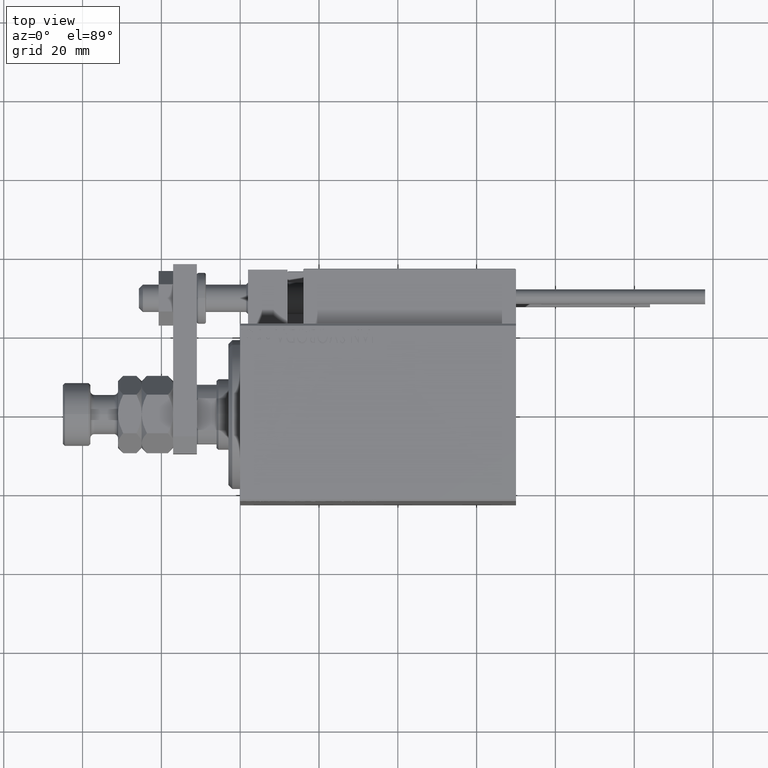
[diagram: clean part render]
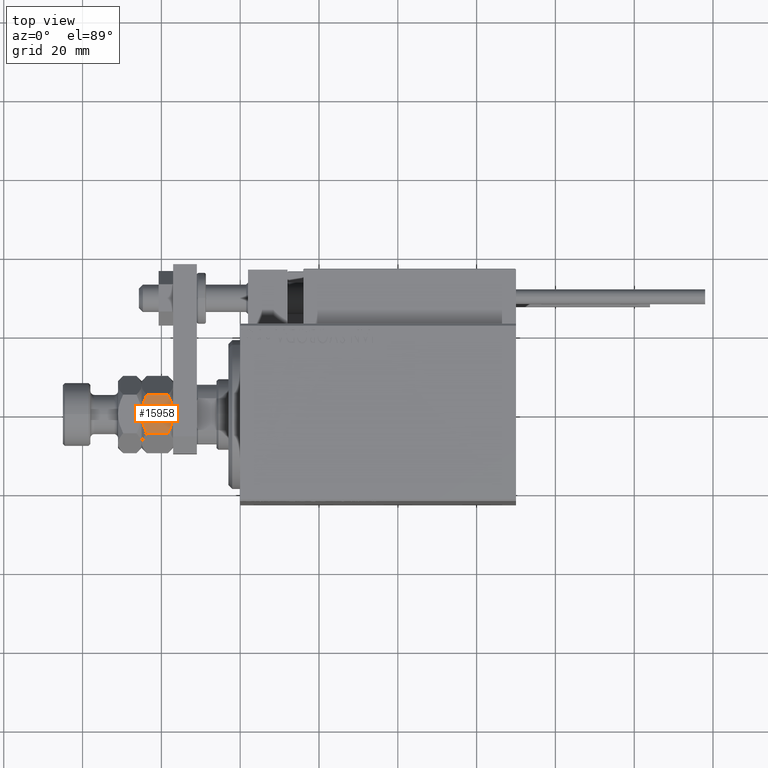
[diagram: same view with one face highlighted and labeled with its STEP entity id]
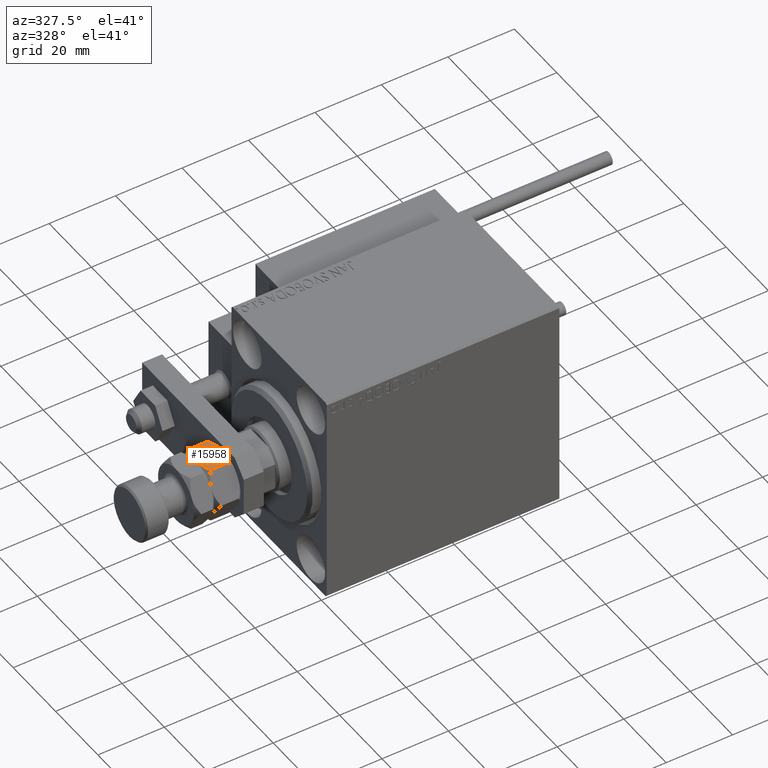
[diagram: same view with one face highlighted and labeled with its STEP entity id]
A machine part, top view. The second image highlights one B-rep face of the part: STEP entity #15958.
A second angle (auxiliary view) of the same face is appended — the face is thin or edge-on in the first view.
In plain terms, the highlighted planar face has unit normal (0, 0, -1).
Its self-contained STEP definition (entity closure, byte-faithful):
#274 = B_SPLINE_CURVE_WITH_KNOTS ( 'NONE', 3,
 ( #49676, #29806, #5929, #21906, #14058, #16102, #4062, #22944 ),
 .UNSPECIFIED., .F., .F.,
 ( 4, 2, 2, 4 ),
 ( 0.02090421300422859452, 0.02218651579087455028, 0.02346881857752050951, 0.02603342415081242450 ),
 .UNSPECIFIED. ) ;
#316 = VERTEX_POINT ( 'NONE', #29132 ) ;
#404 = VECTOR ( 'NONE', #42944, 1000.000000000000000 ) ;
#1139 = CARTESIAN_POINT ( 'NONE',  ( 8.500000000000003553, 2.119956228269632259, 0.2515287342491187572 ) ) ;
#1396 = CARTESIAN_POINT ( 'NONE',  ( 8.500000000000001776, 0.000000000000000000, 0.000000000000000000 ) ) ;
#2579 = CARTESIAN_POINT ( 'NONE',  ( 8.500000000000000000, -3.351438397892505083, 7.397066932847726761 ) ) ;
#4062 = CARTESIAN_POINT ( 'NONE',  ( 8.500000000000001776, 4.140161075469494634, 7.068703530097530496 ) ) ;
#4813 = CARTESIAN_POINT ( 'NONE',  ( 8.500000000000001776, 1.697406582464703328, 0.1576838761756153839 ) ) ;
#5929 = CARTESIAN_POINT ( 'NONE',  ( 8.500000000000003553, 0.8516617604573274436, 7.967848961132536267 ) ) ;
#6162 = EDGE_CURVE ( 'NONE', #38382, #9342, #24151, .T. ) ;
#6363 = ORIENTED_EDGE ( 'NONE', *, *, #12881, .T. ) ;
#6729 = DIRECTION ( 'NONE',  ( -1.000000000000000000, 0.000000000000000000, 0.000000000000000000 ) ) ;
#6984 = DIRECTION ( 'NONE',  ( 0.000000000000000000, 0.000000000000000000, 1.000000000000000000 ) ) ;
#7048 = AXIS2_PLACEMENT_3D ( 'NONE', #42631, #6729, #6984 ) ;
#9342 = VERTEX_POINT ( 'NONE', #22369 ) ;
#10582 = CARTESIAN_POINT ( 'NONE',  ( 8.500000000000003553, -4.139332188297093040, 0.9308820263162719266 ) ) ;
#10708 = CARTESIAN_POINT ( 'NONE',  ( 8.500000000000001776, -1.698611466173707063, 7.842106890605590408 ) ) ;
#10741 = EDGE_LOOP ( 'NONE', ( #31178, #24410, #32139, #23481, #6363, #30151 ) ) ;
#10830 = CARTESIAN_POINT ( 'NONE',  ( 8.500000000000001776, 4.907477288111821601, 8.000000000000000000 ) ) ;
#12407 = CARTESIAN_POINT ( 'NONE',  ( 8.500000000000001776, 4.907477288111821601, 1.314954576223634763 ) ) ;
#12677 = B_SPLINE_CURVE_WITH_KNOTS ( 'NONE', 3,
 ( #12407, #41221, #37038, #1139, #4813, #45149, #40186, #1396 ),
 .UNSPECIFIED., .F., .F.,
 ( 4, 2, 2, 4 ),
 ( 0.01599723978826465831, 0.01855901487057517660, 0.01983990241173043401, 0.02112078995288569488 ),
 .UNSPECIFIED. ) ;
#12881 = EDGE_CURVE ( 'NONE', #38382, #45783, #35103, .T. ) ;
#13007 = VECTOR ( 'NONE', #26054, 1000.000000000000000 ) ;
#14058 = CARTESIAN_POINT ( 'NONE',  ( 8.500000000000001776, 2.124043526558854644, 7.747436326571863319 ) ) ;
#14261 = CARTESIAN_POINT ( 'NONE',  ( 8.500000000000001776, -4.907477288111817160, 1.314954576223629878 ) ) ;
#14513 = CARTESIAN_POINT ( 'NONE',  ( 8.500000000000001776, -0.8519727303832901333, 0.03214805330870232347 ) ) ;
#14887 = CARTESIAN_POINT ( 'NONE',  ( 8.500000000000001776, 4.907477288111821601, 6.685045423776367457 ) ) ;
#15629 = B_SPLINE_CURVE_WITH_KNOTS ( 'NONE', 3,
 ( #38367, #42293, #14513, #27086, #46481, #18949, #10582, #14261 ),
 .UNSPECIFIED., .F., .F.,
 ( 4, 2, 2, 4 ),
 ( 0.02112078995288569488, 0.02240296911910873157, 0.02368514828533176825, 0.02624950661777783814 ),
 .UNSPECIFIED. ) ;
#15958 = ADVANCED_FACE ( 'NONE', ( #38452 ), #45794, .F. ) ;
#16102 = CARTESIAN_POINT ( 'NONE',  ( 8.500000000000001776, 3.353279637626476628, 7.396279653520239528 ) ) ;
#16479 = EDGE_CURVE ( 'NONE', #32655, #316, #12677, .T. ) ;
#17429 = EDGE_CURVE ( 'NONE', #30706, #32655, #42536, .T. ) ;
#18458 = EDGE_CURVE ( 'NONE', #316, #45783, #15629, .T. ) ;
#18949 = CARTESIAN_POINT ( 'NONE',  ( 8.500000000000005329, -3.352020480670829361, 0.6033098685796225435 ) ) ;
#19095 = CARTESIAN_POINT ( 'NONE',  ( 8.500000000000001776, -4.907477288111821601, 8.000000000000000000 ) ) ;
#19581 = CARTESIAN_POINT ( 'NONE',  ( 8.500000000000001776, -0.4250562772389715471, 8.000000000000001776 ) ) ;
#21906 = CARTESIAN_POINT ( 'NONE',  ( 8.500000000000003553, 1.704290491844008049, 7.841080917550288021 ) ) ;
#22369 = CARTESIAN_POINT ( 'NONE',  ( 8.499999999999996447, 0.000000000000000000, 8.000000000000000000 ) ) ;
#22944 = CARTESIAN_POINT ( 'NONE',  ( 8.500000000000001776, 4.907477288111821601, 6.685045423776367457 ) ) ;
#23481 = ORIENTED_EDGE ( 'NONE', *, *, #6162, .F. ) ;
#23507 = CARTESIAN_POINT ( 'NONE',  ( 8.500000000000001776, -4.907477288111817160, 1.314954576223629878 ) ) ;
#24151 = B_SPLINE_CURVE_WITH_KNOTS ( 'NONE', 3,
 ( #30391, #46349, #2579, #50524, #10708, #26700, #19581, #42927 ),
 .UNSPECIFIED., .F., .F.,
 ( 4, 2, 2, 4 ),
 ( 0.01578235603560546041, 0.01834328451991702746, 0.01962374876207281099, 0.02090421300422859452 ),
 .UNSPECIFIED. ) ;
#24410 = ORIENTED_EDGE ( 'NONE', *, *, #17429, .F. ) ;
#24639 = EDGE_CURVE ( 'NONE', #9342, #30706, #274, .T. ) ;
#26054 = DIRECTION ( 'NONE',  ( -0.000000000000000000, -0.000000000000000000, -1.000000000000000000 ) ) ;
#26700 = CARTESIAN_POINT ( 'NONE',  ( 8.500000000000001776, -0.8497849549400450231, 7.967944758129792859 ) ) ;
#27086 = CARTESIAN_POINT ( 'NONE',  ( 8.500000000000001776, -1.706008309425097957, 0.1592238233048459128 ) ) ;
#29132 = CARTESIAN_POINT ( 'NONE',  ( 8.500000000000001776, 0.000000000000000000, 0.000000000000000000 ) ) ;
#29806 = CARTESIAN_POINT ( 'NONE',  ( 8.500000000000003553, 0.4256665909445817020, 8.000000000000000000 ) ) ;
#30151 = ORIENTED_EDGE ( 'NONE', *, *, #18458, .F. ) ;
#30391 = CARTESIAN_POINT ( 'NONE',  ( 8.500000000000001776, -4.907477288111821601, 6.685045423776368345 ) ) ;
#30706 = VERTEX_POINT ( 'NONE', #14887 ) ;
#31178 = ORIENTED_EDGE ( 'NONE', *, *, #16479, .F. ) ;
#32139 = ORIENTED_EDGE ( 'NONE', *, *, #24639, .F. ) ;
#32655 = VERTEX_POINT ( 'NONE', #49460 ) ;
#35103 = LINE ( 'NONE', #19095, #404 ) ;
#37038 = CARTESIAN_POINT ( 'NONE',  ( 8.500000000000000000, 3.352131279506819883, 0.6031284304619856096 ) ) ;
#38367 = CARTESIAN_POINT ( 'NONE',  ( 8.500000000000001776, 0.000000000000000000, 0.000000000000000000 ) ) ;
#38382 = VERTEX_POINT ( 'NONE', #43155 ) ;
#38452 = FACE_OUTER_BOUND ( 'NONE', #10741, .T. ) ;
#40186 = CARTESIAN_POINT ( 'NONE',  ( 8.500000000000001776, 0.4252082920830597690, -3.049318610115479988E-17 ) ) ;
#41221 = CARTESIAN_POINT ( 'NONE',  ( 8.500000000000001776, 4.139854994771645202, 0.9311434295535470085 ) ) ;
#42293 = CARTESIAN_POINT ( 'NONE',  ( 8.500000000000003553, -0.4256370648452550420, 3.162256336416055421E-17 ) ) ;
#42536 = LINE ( 'NONE', #10830, #13007 ) ;
#42631 = CARTESIAN_POINT ( 'NONE',  ( 8.500000000000001776, -4.907477288111821601, 8.000000000000000000 ) ) ;
#42927 = CARTESIAN_POINT ( 'NONE',  ( 8.499999999999996447, 0.000000000000000000, 8.000000000000000000 ) ) ;
#42944 = DIRECTION ( 'NONE',  ( -0.000000000000000000, -0.000000000000000000, -1.000000000000000000 ) ) ;
#43155 = CARTESIAN_POINT ( 'NONE',  ( 8.500000000000001776, -4.907477288111821601, 6.685045423776368345 ) ) ;
#45149 = CARTESIAN_POINT ( 'NONE',  ( 8.500000000000001776, 0.8497195448779554239, 0.03207620093399844718 ) ) ;
#45783 = VERTEX_POINT ( 'NONE', #23507 ) ;
#45794 = PLANE ( 'NONE',  #7048 ) ;
#46349 = CARTESIAN_POINT ( 'NONE',  ( 8.500000000000001776, -4.139497883677781154, 7.069035125993385016 ) ) ;
#46481 = CARTESIAN_POINT ( 'NONE',  ( 8.500000000000001776, -2.123774520232884377, 0.2525122409469403029 ) ) ;
#49460 = CARTESIAN_POINT ( 'NONE',  ( 8.500000000000001776, 4.907477288111821601, 1.314954576223634763 ) ) ;
#49676 = CARTESIAN_POINT ( 'NONE',  ( 8.499999999999996447, 0.000000000000000000, 8.000000000000000000 ) ) ;
#50524 = CARTESIAN_POINT ( 'NONE',  ( 8.500000000000003553, -2.120344129356182439, 7.748361753394901186 ) ) ;